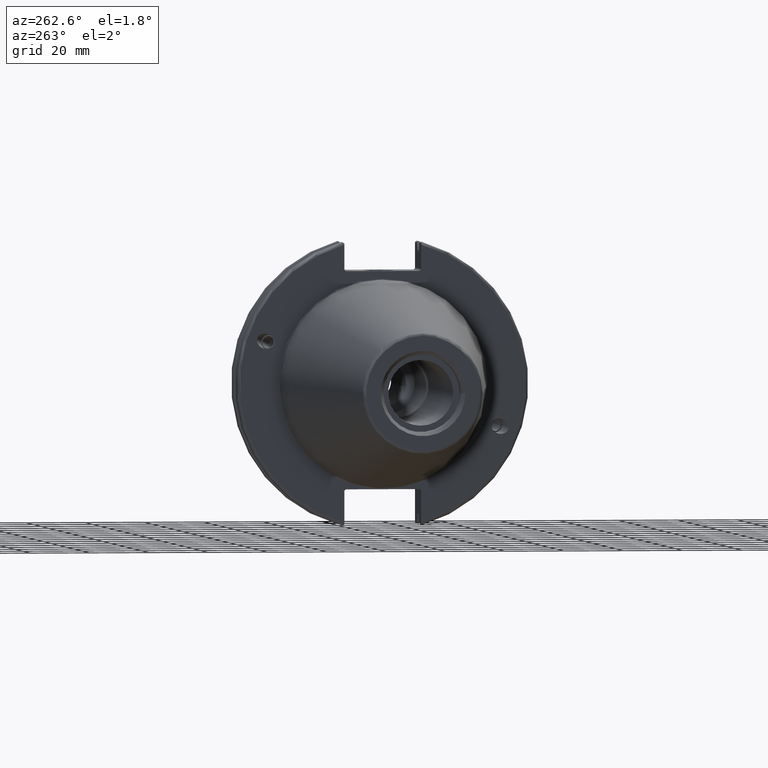
[diagram: clean part render]
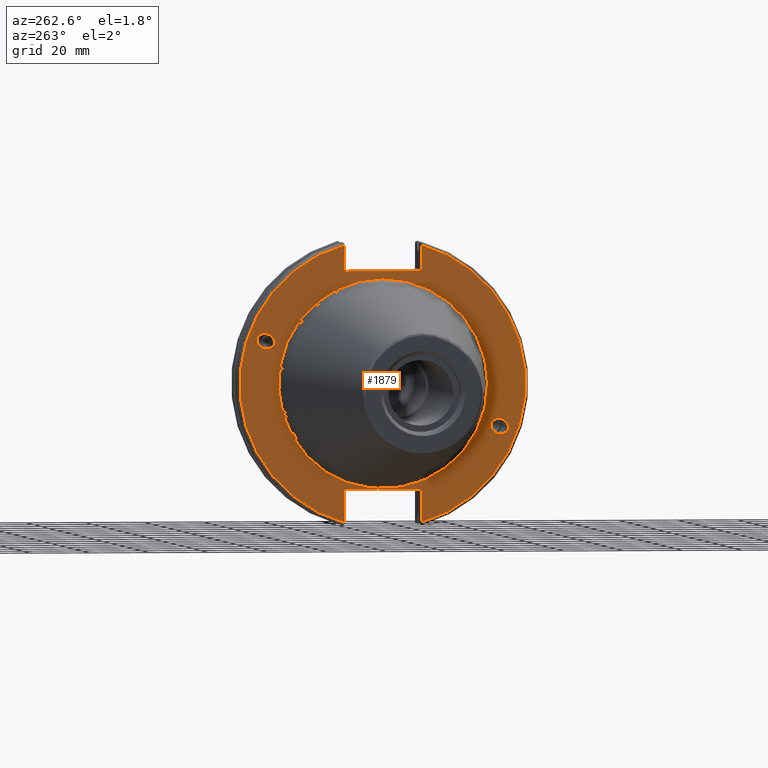
[diagram: same view with one face highlighted and labeled with its STEP entity id]
A machine part, auxiliary view. The second image highlights one B-rep face of the part: STEP entity #1879.
In plain terms, the highlighted planar face has unit normal (-1, 0, 0).
Its self-contained STEP definition (entity closure, byte-faithful):
#31=ELLIPSE('',#2066,3.05193647190364,2.5);
#32=ELLIPSE('',#2100,3.05193647190364,2.5);
#44=PLANE('',#2110);
#120=FACE_BOUND('',#346,.T.);
#121=FACE_BOUND('',#347,.T.);
#122=FACE_BOUND('',#348,.T.);
#226=FACE_OUTER_BOUND('',#345,.T.);
#345=EDGE_LOOP('',(#1531,#1532,#1533,#1534,#1535,#1536,#1537,#1538,#1539,
#1540,#1541,#1542));
#346=EDGE_LOOP('',(#1543));
#347=EDGE_LOOP('',(#1544));
#348=EDGE_LOOP('',(#1545));
#442=LINE('',#3501,#545);
#443=LINE('',#3503,#546);
#444=LINE('',#3505,#547);
#445=LINE('',#3507,#548);
#446=LINE('',#3509,#549);
#447=LINE('',#3513,#550);
#448=LINE('',#3515,#551);
#449=LINE('',#3517,#552);
#450=LINE('',#3519,#553);
#451=LINE('',#3520,#554);
#545=VECTOR('',#2558,10.);
#546=VECTOR('',#2559,10.);
#547=VECTOR('',#2560,10.);
#548=VECTOR('',#2561,10.);
#549=VECTOR('',#2562,10.);
#550=VECTOR('',#2565,10.);
#551=VECTOR('',#2566,10.);
#552=VECTOR('',#2567,10.);
#553=VECTOR('',#2568,10.);
#554=VECTOR('',#2569,10.);
#701=CIRCLE('',#2108,35.125);
#703=CIRCLE('',#2111,48.2125);
#704=CIRCLE('',#2112,48.2125);
#814=VERTEX_POINT('',#3218);
#852=VERTEX_POINT('',#3477);
#857=VERTEX_POINT('',#3492);
#858=VERTEX_POINT('',#3497);
#859=VERTEX_POINT('',#3498);
#860=VERTEX_POINT('',#3500);
#861=VERTEX_POINT('',#3502);
#862=VERTEX_POINT('',#3504);
#863=VERTEX_POINT('',#3506);
#864=VERTEX_POINT('',#3508);
#865=VERTEX_POINT('',#3510);
#866=VERTEX_POINT('',#3512);
#867=VERTEX_POINT('',#3514);
#868=VERTEX_POINT('',#3516);
#869=VERTEX_POINT('',#3518);
#1042=EDGE_CURVE('',#814,#814,#31,.T.);
#1093=EDGE_CURVE('',#852,#852,#32,.T.);
#1100=EDGE_CURVE('',#857,#857,#701,.T.);
#1102=EDGE_CURVE('',#858,#859,#703,.T.);
#1103=EDGE_CURVE('',#858,#860,#442,.T.);
#1104=EDGE_CURVE('',#861,#860,#443,.T.);
#1105=EDGE_CURVE('',#861,#862,#444,.T.);
#1106=EDGE_CURVE('',#863,#862,#445,.T.);
#1107=EDGE_CURVE('',#863,#864,#446,.T.);
#1108=EDGE_CURVE('',#865,#864,#704,.T.);
#1109=EDGE_CURVE('',#865,#866,#447,.T.);
#1110=EDGE_CURVE('',#867,#866,#448,.T.);
#1111=EDGE_CURVE('',#867,#868,#449,.T.);
#1112=EDGE_CURVE('',#869,#868,#450,.T.);
#1113=EDGE_CURVE('',#869,#859,#451,.T.);
#1531=ORIENTED_EDGE('',*,*,#1102,.F.);
#1532=ORIENTED_EDGE('',*,*,#1103,.T.);
#1533=ORIENTED_EDGE('',*,*,#1104,.F.);
#1534=ORIENTED_EDGE('',*,*,#1105,.T.);
#1535=ORIENTED_EDGE('',*,*,#1106,.F.);
#1536=ORIENTED_EDGE('',*,*,#1107,.T.);
#1537=ORIENTED_EDGE('',*,*,#1108,.F.);
#1538=ORIENTED_EDGE('',*,*,#1109,.T.);
#1539=ORIENTED_EDGE('',*,*,#1110,.F.);
#1540=ORIENTED_EDGE('',*,*,#1111,.T.);
#1541=ORIENTED_EDGE('',*,*,#1112,.F.);
#1542=ORIENTED_EDGE('',*,*,#1113,.T.);
#1543=ORIENTED_EDGE('',*,*,#1042,.T.);
#1544=ORIENTED_EDGE('',*,*,#1093,.T.);
#1545=ORIENTED_EDGE('',*,*,#1100,.F.);
#1879=ADVANCED_FACE('',(#226,#120,#121,#122),#44,.T.);
#2066=AXIS2_PLACEMENT_3D('',#3220,#2448,#2449);
#2100=AXIS2_PLACEMENT_3D('',#3479,#2532,#2533);
#2108=AXIS2_PLACEMENT_3D('',#3494,#2550,#2551);
#2110=AXIS2_PLACEMENT_3D('',#3496,#2554,#2555);
#2111=AXIS2_PLACEMENT_3D('',#3499,#2556,#2557);
#2112=AXIS2_PLACEMENT_3D('',#3511,#2563,#2564);
#2448=DIRECTION('center_axis',(1.,0.,0.));
#2449=DIRECTION('ref_axis',(0.,-0.939692620785907,-0.342020143325671));
#2532=DIRECTION('center_axis',(1.,0.,0.));
#2533=DIRECTION('ref_axis',(0.,0.939692620785907,0.342020143325672));
#2550=DIRECTION('center_axis',(-1.,0.,0.));
#2551=DIRECTION('ref_axis',(0.,-1.,1.83697019872103E-16));
#2554=DIRECTION('center_axis',(-1.,0.,0.));
#2555=DIRECTION('ref_axis',(0.,0.,1.));
#2556=DIRECTION('center_axis',(1.,0.,0.));
#2557=DIRECTION('ref_axis',(0.,-1.,1.60812264967664E-16));
#2558=DIRECTION('',(0.,0.,-1.));
#2559=DIRECTION('',(0.,-0.707106781186549,0.707106781186546));
#2560=DIRECTION('',(0.,1.,0.));
#2561=DIRECTION('',(0.,-0.707106781186549,-0.707106781186546));
#2562=DIRECTION('',(0.,0.,1.));
#2563=DIRECTION('center_axis',(1.,0.,0.));
#2564=DIRECTION('ref_axis',(0.,1.,-6.12323399573677E-17));
#2565=DIRECTION('',(0.,0.,1.));
#2566=DIRECTION('',(0.,0.707106781186549,-0.707106781186546));
#2567=DIRECTION('',(0.,-1.,0.));
#2568=DIRECTION('',(0.,0.707106781186549,0.707106781186546));
#2569=DIRECTION('',(0.,0.,-1.));
#3218=CARTESIAN_POINT('',(3.175,-36.5992078912529,-13.3210222701368));
#3220=CARTESIAN_POINT('Origin',(3.175,-39.4670900730082,-14.3648460196781));
#3477=CARTESIAN_POINT('',(3.175,36.5992078912529,13.3210222701368));
#3479=CARTESIAN_POINT('Origin',(3.175,39.4670900730082,14.3648460196781));
#3492=CARTESIAN_POINT('',(3.175,-4.30157188200508E-15,35.125));
#3494=CARTESIAN_POINT('Origin',(3.175,0.,0.));
#3496=CARTESIAN_POINT('Origin',(3.175,49.2125,0.));
#3497=CARTESIAN_POINT('',(3.175,-12.95,46.4407434937254));
#3498=CARTESIAN_POINT('',(3.175,-12.95,-46.4407434937254));
#3499=CARTESIAN_POINT('Origin',(3.175,0.,0.));
#3500=CARTESIAN_POINT('',(3.175,-12.95,38.219));
#3501=CARTESIAN_POINT('',(3.175,-12.95,18.8595));
#3502=CARTESIAN_POINT('',(3.175,-12.45,37.719));
#3503=CARTESIAN_POINT('',(3.175,12.2703750000001,12.998625));
#3504=CARTESIAN_POINT('',(3.175,12.45,37.719));
#3505=CARTESIAN_POINT('',(3.175,24.60625,37.719));
#3506=CARTESIAN_POINT('',(3.175,12.95,38.219));
#3507=CARTESIAN_POINT('',(3.175,12.335875,37.604875));
#3508=CARTESIAN_POINT('',(3.175,12.95,46.4407434937254));
#3509=CARTESIAN_POINT('',(3.175,12.95,18.8595));
#3510=CARTESIAN_POINT('',(3.175,12.95,-46.4407434937254));
#3511=CARTESIAN_POINT('Origin',(3.175,0.,0.));
#3512=CARTESIAN_POINT('',(3.175,12.95,-35.806));
#3513=CARTESIAN_POINT('',(3.175,12.95,-17.653));
#3514=CARTESIAN_POINT('',(3.175,12.45,-35.306));
#3515=CARTESIAN_POINT('',(3.175,12.939125,-35.795125));
#3516=CARTESIAN_POINT('',(3.175,-12.45,-35.306));
#3517=CARTESIAN_POINT('',(3.175,24.60625,-35.306));
#3518=CARTESIAN_POINT('',(3.175,-12.95,-35.806));
#3519=CARTESIAN_POINT('',(3.175,11.6671250000001,-11.188875));
#3520=CARTESIAN_POINT('',(3.175,-12.95,-17.653));